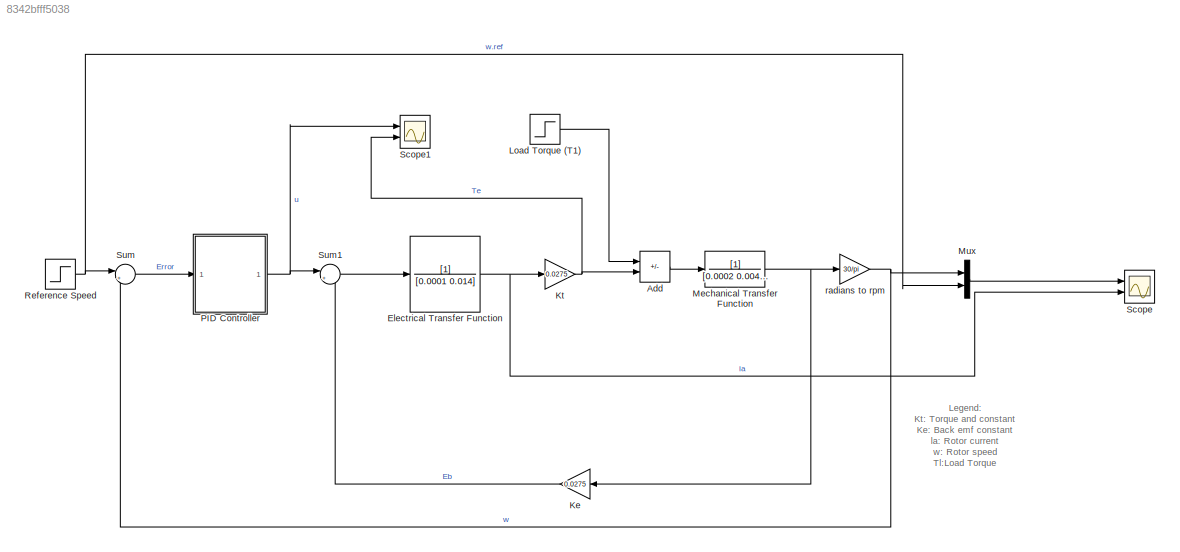
MODEL slx_8342bfff5038
KIND model
CONFIG AbsTol = auto
CONFIG EnableMultiTasking = off
CONFIG FixedStep = auto
CONFIG MaxStep = auto
CONFIG MinStep = auto
CONFIG RelTol = 1e-3
CONFIG SampleTimeConstraint = Unconstrained
CONFIG SolverName = VariableStepAuto
CONFIG StartTime = 0.0
CONFIG StopTime = 10.0
BLOCK [Sum] Add
  IconShape = rectangular
  Inputs = -+
  Ports = [2, 1]
BLOCK [TransferFcn] Electrical Transfer Function
  Denominator = [0.0001 0.014]
BLOCK [Gain] Ke
  Gain = 0.0275
BLOCK [Gain] Kt
  Gain = 0.0275
BLOCK [Step] Load Torque (T1)
  After = 10
  SampleTime = 0
  Time = 0.1
BLOCK [TransferFcn] Mechanical Transfer Function
  Denominator = [0.0002 0.004586]
BLOCK [Mux] Mux
  DisplayOption = bar
  Inputs = 2
  Ports = [2, 1]
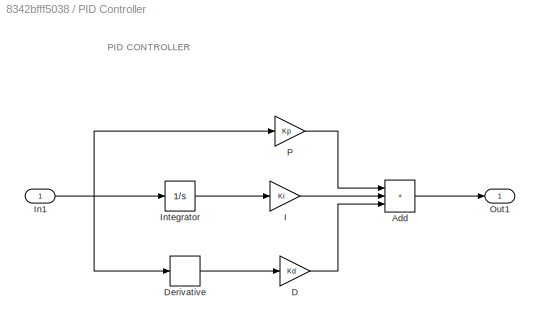
BLOCK [SubSystem] PID Controller
  Ports = [1, 1]
  RequestExecContextInheritance = off
BLOCK [Sum] PID Controller/Add
  IconShape = rectangular
  Inputs = +++
  Ports = [3, 1]
BLOCK [Gain] PID Controller/D
  Gain = Kd
BLOCK [Derivative] PID Controller/Derivative
BLOCK [Gain] PID Controller/I
  Gain = Ki
BLOCK [Inport] PID Controller/In1
BLOCK [Integrator] PID Controller/Integrator
  Ports = [1, 1]
BLOCK [Outport] PID Controller/Out1
BLOCK [Gain] PID Controller/P
  Gain = Kp
BLOCK [Step] Reference Speed
  After = 1500
  SampleTime = 0
  Time = 0
BLOCK [Scope] Scope
  Floating = off
  NumInputPorts = 2
  Ports = [2]
  ScopeSpecificationString = Simulink.scopes.TimeScopeBlockCfg('CurrentConfiguration', extmgr.ConfigurationSet(extmgr.Configuration('Core','General UI',true),extmgr.Configuration('Core','Source UI',true),extmgr.Configuration('Sources','WiredSimulink',true,'DataLoggingVariableName','ScopeData1'),extmgr.Configuration('Visuals','Time Domain',true,'SerializedDisplays',{struct('MinYLimReal','-262.86056','MaxYLimReal','2365.74502',...<+1462ch>
BLOCK [Scope] Scope1
  Floating = off
  NumInputPorts = 2
  Ports = [2]
  ScopeSpecificationString = Simulink.scopes.TimeScopeBlockCfg('CurrentConfiguration', extmgr.ConfigurationSet(extmgr.Configuration('Core','General UI',true),extmgr.Configuration('Core','Source UI',true),extmgr.Configuration('Sources','WiredSimulink',true),extmgr.Configuration('Visuals','Time Domain',true,'SerializedDisplays',{struct('MinYLimReal','-10667.23823','MaxYLimReal','95669.79722','YLabelReal','','MinYLimMag','   0.0...<+1427ch>
BLOCK [Sum] Sum
  Inputs = |+-
  Ports = [2, 1]
BLOCK [Sum] Sum1
  Inputs = |+-
  Ports = [2, 1]
BLOCK [Gain] radians to rpm
  Gain = 30/pi
ANNOTATION (root): Legend: Kt: Torque and constant Ke: Back emf constant la: Rotor current w: Rotor speed Tl:Load Torque Te: Electromagnetic Torque Eb:Back emf U: DC Bus voltage
ANNOTATION PID Controller: PID CONTROLLER
LINE Add:1 -> Mechanical Transfer Function:1
NET Electrical Transfer Function:1 -> Kt:1, Scope:2
LINE Ke:1 -> Sum1:2
NET Kt:1 -> Add:2, Scope1:2
LINE Load Torque (T1):1 -> Add:1
NET Mechanical Transfer Function:1 -> Ke:1, radians to rpm:1
LINE Mux:1 -> Scope:1
LINE PID Controller/Add:1 -> PID Controller/Out1:1
LINE PID Controller/D:1 -> PID Controller/Add:3
LINE PID Controller/Derivative:1 -> PID Controller/D:1
LINE PID Controller/I:1 -> PID Controller/Add:2
NET PID Controller/In1:1 -> PID Controller/Derivative:1, PID Controller/Integrator:1, PID Controller/P:1
LINE PID Controller/Integrator:1 -> PID Controller/I:1
LINE PID Controller/P:1 -> PID Controller/Add:1
NET PID Controller:1 -> Scope1:1, Sum1:1
NET Reference Speed:1 -> Mux:2, Sum:1
LINE Sum1:1 -> Electrical Transfer Function:1
LINE Sum:1 -> PID Controller:1
NET radians to rpm:1 -> Mux:1, Sum:2
note: NET lines group one-source signal fan-out (src -> all destinations, sorted); 1:1 wires keep LINE
